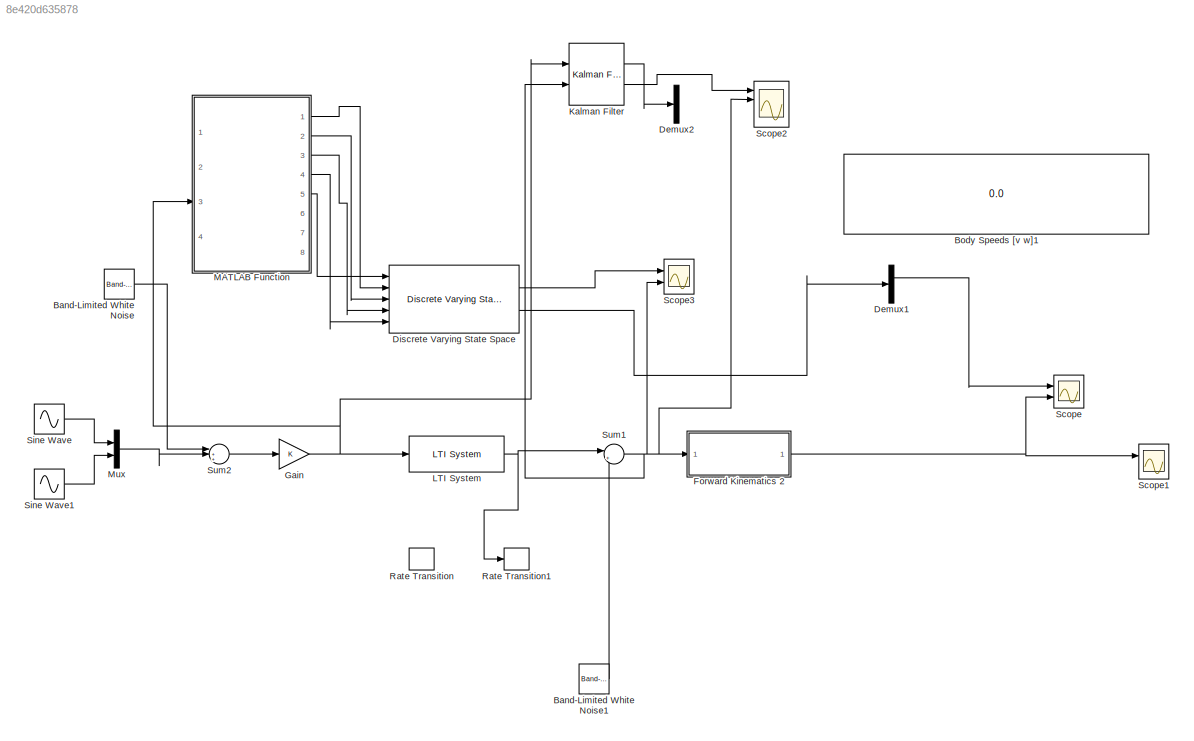
MODEL slx_8e420d635878
KIND model
CONFIG AbsTol = auto
CONFIG EnableMultiTasking = off
CONFIG FixedStep = auto
CONFIG MaxStep = auto
CONFIG MinStep = auto
CONFIG RelTol = 1e-3
CONFIG SampleTimeConstraint = Unconstrained
CONFIG Solver = VariableStepAuto
CONFIG SolverName = VariableStepAuto
CONFIG StartTime = 0.0
CONFIG StopTime = 30
BLOCK [Reference] Band-Limited White Noise  REF=simulink/Sources/Band-Limited
White Noise
  Ports = [0, 1]
  SourceBlock = simulink/Sources/Band-Limited\nWhite Noise
  SourceProductBaseCode = SL
  SourceProductName = Simulink
  SourceType = Band-Limited White Noise.
BLOCK [Reference] Band-Limited White Noise1  REF=simulink/Sources/Band-Limited
White Noise
  Ports = [0, 1]
  SourceBlock = simulink/Sources/Band-Limited\nWhite Noise
  SourceProductBaseCode = SL
  SourceProductName = Simulink
  SourceType = Band-Limited White Noise.
BLOCK [Display] Body Speeds [v w]1
  Decimation = 1
  Ports = [1]
BLOCK [Demux] Demux1
  DisplayOption = bar
  Outputs = 2
  Ports = [1, 2]
BLOCK [Demux] Demux2
  DisplayOption = bar
  Ports = [1, 4]
BLOCK [Reference] Discrete Varying State Space  REF=cstblocks/Linear Parameter Varying/Discrete Varying State Space
  Ports = [5, 2]
  SourceBlock = cstblocks/Linear Parameter Varying/Discrete Varying State Space
  SourceProductBaseCode = CT
  SourceProductName = Control System Toolbox
  SourceType = Discrete Varying State Space
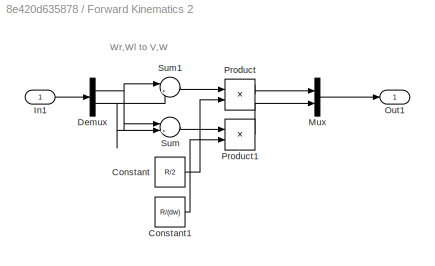
BLOCK [SubSystem] Forward Kinematics 2
  Ports = [1, 1]
  RequestExecContextInheritance = off
BLOCK [Constant] Forward Kinematics 2/Constant
  Value = R/2
BLOCK [Constant] Forward Kinematics 2/Constant1
  Value = R/(dw)
BLOCK [Demux] Forward Kinematics 2/Demux
  DisplayOption = bar
  Outputs = 2
  Ports = [1, 2]
BLOCK [Inport] Forward Kinematics 2/In1
  IconDisplay = Port number
BLOCK [Mux] Forward Kinematics 2/Mux
  DisplayOption = bar
  Inputs = 2
  Ports = [2, 1]
BLOCK [Outport] Forward Kinematics 2/Out1
  IconDisplay = Port number
BLOCK [Product] Forward Kinematics 2/Product
  InputSameDT = off
  OutDataTypeStr = Inherit: Inherit via internal rule
  Ports = [2, 1]
  RndMeth = Floor
  SaturateOnIntegerOverflow = off
BLOCK [Product] Forward Kinematics 2/Product1
  InputSameDT = off
  OutDataTypeStr = Inherit: Inherit via internal rule
  Ports = [2, 1]
  RndMeth = Floor
  SaturateOnIntegerOverflow = off
BLOCK [Sum] Forward Kinematics 2/Sum
  IconShape = round
  InputSameDT = off
  Inputs = |+-
  OutDataTypeStr = Inherit: Inherit via internal rule
  Ports = [2, 1]
  SaturateOnIntegerOverflow = off
BLOCK [Sum] Forward Kinematics 2/Sum1
  IconShape = round
  InputSameDT = off
  Inputs = |++
  OutDataTypeStr = Inherit: Inherit via internal rule
  Ports = [2, 1]
  SaturateOnIntegerOverflow = off
BLOCK [Gain] Gain
  OutDataTypeStr = Inherit: Inherit via internal rule
  ParamDataTypeStr = Inherit: Inherit via internal rule
  SaturateOnIntegerOverflow = off
BLOCK [Reference] Kalman Filter  REF=ctrlSharedLib/Kalman Filter
  Ports = [2, 2]
  SourceBlock = ctrlSharedLib/Kalman Filter
  SourceProductBaseCode = CT
  SourceProductName = Control System Toolbox
  SourceType = ctrlKalmanFilter
BLOCK [Reference] LTI System  REF=cstblocks/LTI System
  Ports = [1, 1]
  SourceBlock = cstblocks/LTI System
  SourceProductBaseCode = CT
  SourceProductName = Control System Toolbox
  SourceType = LTI Block
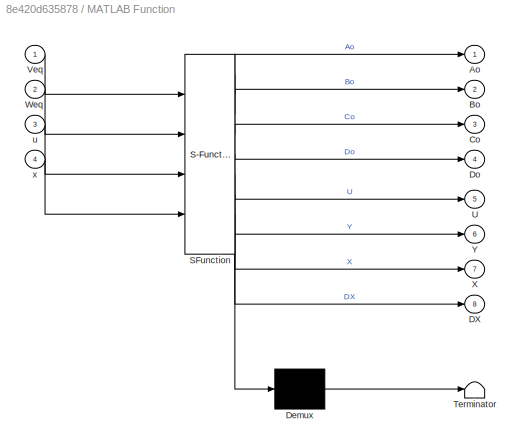
BLOCK [SubSystem] MATLAB Function
  ErrorFcn = Stateflow.Translate.translate
  PermitHierarchicalResolution = ExplicitOnly
  Ports = [4, 8]
  RequestExecContextInheritance = off
  SFBlockType = MATLAB Function
  SystemSampleTime = sampleTime
  TreatAsAtomicUnit = on
BLOCK [Demux] MATLAB Function/ Demux 
  Outputs = 1
  Ports = [1, 1]
BLOCK [S-Function] MATLAB Function/ SFunction 
  EnableBusSupport = on
  FunctionName = sf_sfun
  Parameters = I,Iw,L,R,d,dw,md,sampleTime
  PortCounts = [4 9]
  Ports = [4, 9]
  SFcnIsStateOwnerBlock = off
  SFunctionDeploymentMode = off
  Tag = Stateflow S-Function KalmanFilter_Testing 2
BLOCK [Terminator] MATLAB Function/ Terminator 
BLOCK [Outport] MATLAB Function/Ao
  IconDisplay = Port number
BLOCK [Outport] MATLAB Function/Bo
  IconDisplay = Port number
  Port = 2
BLOCK [Outport] MATLAB Function/Co
  IconDisplay = Port number
  Port = 3
BLOCK [Outport] MATLAB Function/DX
  IconDisplay = Port number
  Port = 8
BLOCK [Outport] MATLAB Function/Do
  IconDisplay = Port number
  Port = 4
BLOCK [Outport] MATLAB Function/U
  IconDisplay = Port number
  Port = 5
BLOCK [Inport] MATLAB Function/Veq
  IconDisplay = Port number
BLOCK [Inport] MATLAB Function/Weq
  IconDisplay = Port number
  Port = 2
BLOCK [Outport] MATLAB Function/X
  IconDisplay = Port number
  Port = 7
BLOCK [Outport] MATLAB Function/Y
  IconDisplay = Port number
  Port = 6
BLOCK [Inport] MATLAB Function/u
  IconDisplay = Port number
  Port = 3
BLOCK [Inport] MATLAB Function/x
  IconDisplay = Port number
  Port = 4
BLOCK [Mux] Mux
  DisplayOption = bar
  Inputs = 2
  Ports = [2, 1]
BLOCK [RateTransition] Rate Transition
  OutPortSampleTime = sampleTime
BLOCK [RateTransition] Rate Transition1
  OutPortSampleTime = sampleTime
BLOCK [Scope] Scope
  Floating = off
  NumInputPorts = 2
  Ports = [2]
  ScopeSpecificationString = Simulink.scopes.TimeScopeBlockCfg('CurrentConfiguration', extmgr.ConfigurationSet(extmgr.Configuration('Core','General UI',true),extmgr.Configuration('Core','Source UI',true),extmgr.Configuration('Sources','WiredSimulink',true),extmgr.Configuration('Visuals','Time Domain',true,'SerializedDisplays',{struct('MinYLimReal','-0.42975','MaxYLimReal','0.42975','YLabelReal','','MinYLimMag','0.00000','MaxY...<+1527ch>
BLOCK [Scope] Scope1
  Floating = off
  NumInputPorts = 2
  Ports = [2]
  ScopeSpecificationString = Simulink.scopes.TimeScopeBlockCfg('CurrentConfiguration', extmgr.ConfigurationSet(extmgr.Configuration('Core','General UI',true),extmgr.Configuration('Core','Source UI',true),extmgr.Configuration('Sources','WiredSimulink',true,'DataLoggingVariableName','ScopeData1'),extmgr.Configuration('Visuals','Time Domain',true,'SerializedDisplays',{struct('MinYLimReal','-0.42974','MaxYLimReal','0.42974','YLab...<+1489ch>
BLOCK [Scope] Scope2
  Floating = off
  NumInputPorts = 4
  Ports = [4]
  ScopeSpecificationString = Simulink.scopes.TimeScopeBlockCfg('CurrentConfiguration', extmgr.ConfigurationSet(extmgr.Configuration('Core','General UI',true),extmgr.Configuration('Core','Source UI',true),extmgr.Configuration('Sources','WiredSimulink',true,'DataLoggingVariableName','ScopeData2'),extmgr.Configuration('Visuals','Time Domain',true,'SerializedDisplays',{struct('MinYLimReal','-0.38886','MaxYLimReal','4.45648','YLab...<+1509ch>
BLOCK [Scope] Scope3
  Floating = off
  NumInputPorts = 2
  Ports = [2]
  ScopeSpecificationString = Simulink.scopes.TimeScopeBlockCfg('CurrentConfiguration', extmgr.ConfigurationSet(extmgr.Configuration('Core','General UI',true),extmgr.Configuration('Core','Source UI',true),extmgr.Configuration('Sources','WiredSimulink',true,'DataLoggingVariableName','ScopeData3'),extmgr.Configuration('Visuals','Time Domain',true,'SerializedDisplays',{struct('MinYLimReal','3.94466','MaxYLimReal','5.53998','YLabe...<+1511ch>
BLOCK [Sin] Sine Wave
  Bias = 1
  Ports = [0, 1]
BLOCK [Sin] Sine Wave1
  Bias = 1
  Phase = pi/4
  Ports = [0, 1]
BLOCK [Sum] Sum1
  IconShape = round
  InputSameDT = off
  Inputs = |++
  OutDataTypeStr = Inherit: Inherit via internal rule
  Ports = [2, 1]
  SaturateOnIntegerOverflow = off
BLOCK [Sum] Sum2
  IconShape = round
  InputSameDT = off
  Inputs = |++-
  OutDataTypeStr = Inherit: Inherit via internal rule
  Ports = [3, 1]
  SaturateOnIntegerOverflow = off
ANNOTATION Forward Kinematics 2: Wr,Wl to V,W
LINE Band-Limited White Noise1:1 -> Sum1:2
LINE Band-Limited White Noise:1 -> Sum2:1
LINE Demux1:1 -> Scope:1
LINE Discrete Varying State Space:1 -> Scope3:1
LINE Discrete Varying State Space:2 -> Demux1:1
LINE Forward Kinematics 2/Constant1:1 -> Forward Kinematics 2/Product1:2
LINE Forward Kinematics 2/Constant:1 -> Forward Kinematics 2/Product:2
NET Forward Kinematics 2/Demux:1 -> Forward Kinematics 2/Sum1:1, Forward Kinematics 2/Sum:1
NET Forward Kinematics 2/Demux:2 -> Forward Kinematics 2/Sum1:2, Forward Kinematics 2/Sum:2
LINE Forward Kinematics 2/In1:1 -> Forward Kinematics 2/Demux:1
LINE Forward Kinematics 2/Mux:1 -> Forward Kinematics 2/Out1:1
LINE Forward Kinematics 2/Product1:1 -> Forward Kinematics 2/Mux:2
LINE Forward Kinematics 2/Product:1 -> Forward Kinematics 2/Mux:1
LINE Forward Kinematics 2/Sum1:1 -> Forward Kinematics 2/Product:1
LINE Forward Kinematics 2/Sum:1 -> Forward Kinematics 2/Product1:1
NET Forward Kinematics 2:1 -> Scope1:1, Scope:2
NET Gain:1 -> Kalman Filter:1, LTI System:1, MATLAB Function:3
LINE Kalman Filter:1 -> Demux2:1
LINE Kalman Filter:2 -> Scope2:1
NET LTI System:1 -> Rate Transition1:1, Sum1:1
LINE MATLAB Function:1 -> Discrete Varying State Space:2
LINE MATLAB Function:2 -> Discrete Varying State Space:3
LINE MATLAB Function:3 -> Discrete Varying State Space:4
LINE MATLAB Function:4 -> Discrete Varying State Space:5
LINE MATLAB Function:5 -> Discrete Varying State Space:1
LINE Mux:1 -> Sum2:2
LINE Sine Wave1:1 -> Mux:2
LINE Sine Wave:1 -> Mux:1
NET Sum1:1 -> Forward Kinematics 2:1, Kalman Filter:2, Scope2:2, Scope3:2
LINE Sum2:1 -> Gain:1
note: NET lines group one-source signal fan-out (src -> all destinations, sorted); 1:1 wires keep LINE
CHART MATLAB Function states=1 transitions=1
  STATE_LABEL 'eML_blk_kernel()'
  STATE_LABEL 'SCRIPT:\nfunction [Ao,Bo,Co,Do,U,Y,X,DX] = fcn(Veq,Weq,u,x,sampleTime,d, dw, Iw, I, md, R, L)\n% Sample time\nTs = sampleTime;\n% Model Parameters\nKt = 0.0046; Kg = 50; Kb = Kt; Beta = 2.29e-06; La =1.729e-03; Ra = 5.51;\nm = 3.4; mc = 2.76 + md; I = I ; Iw = Iw; L = L; d = d; dw = dw; \nA = m + 2*Iw/(R*R); B = I + dw*dw*Iw/(2*R*R);\n\n% Continuous-time model for Plant e_r, e_l to Wr,Wl\nAc = [-2*Beta*Kg*K...<+720ch>'
